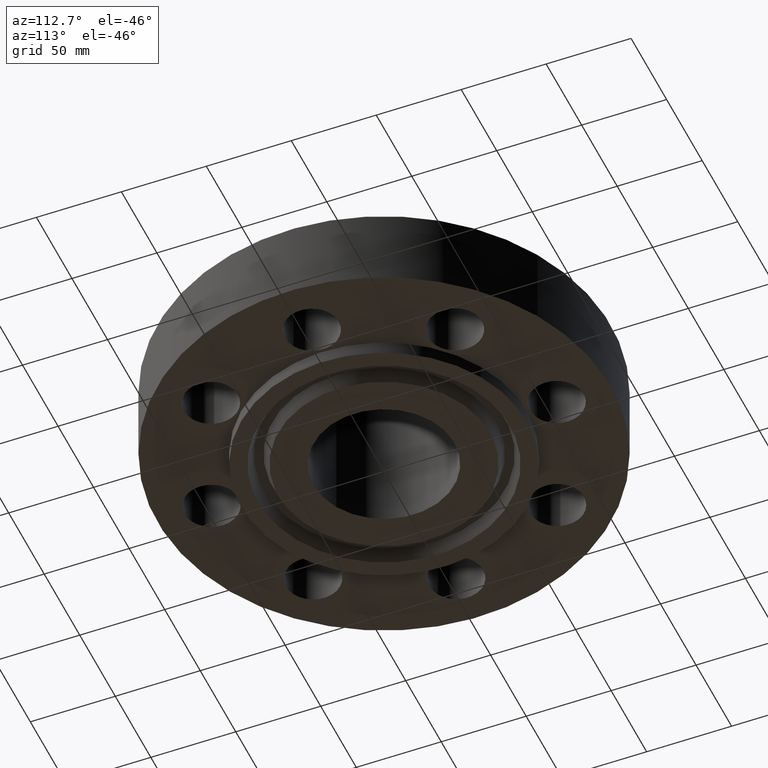
[diagram: clean part render]
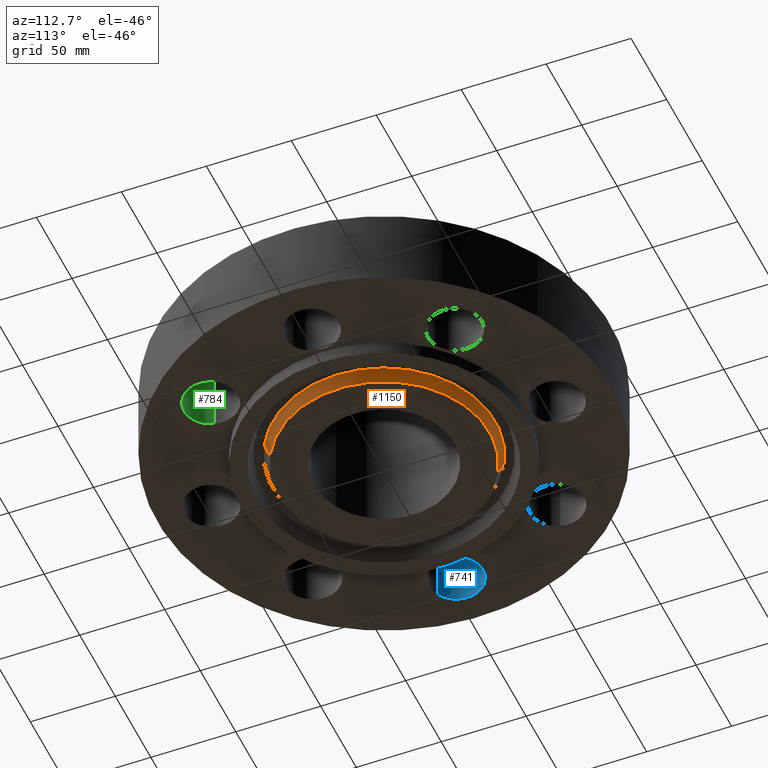
[diagram: same view with three faces highlighted in distinct colors, each labeled with its STEP entity id]
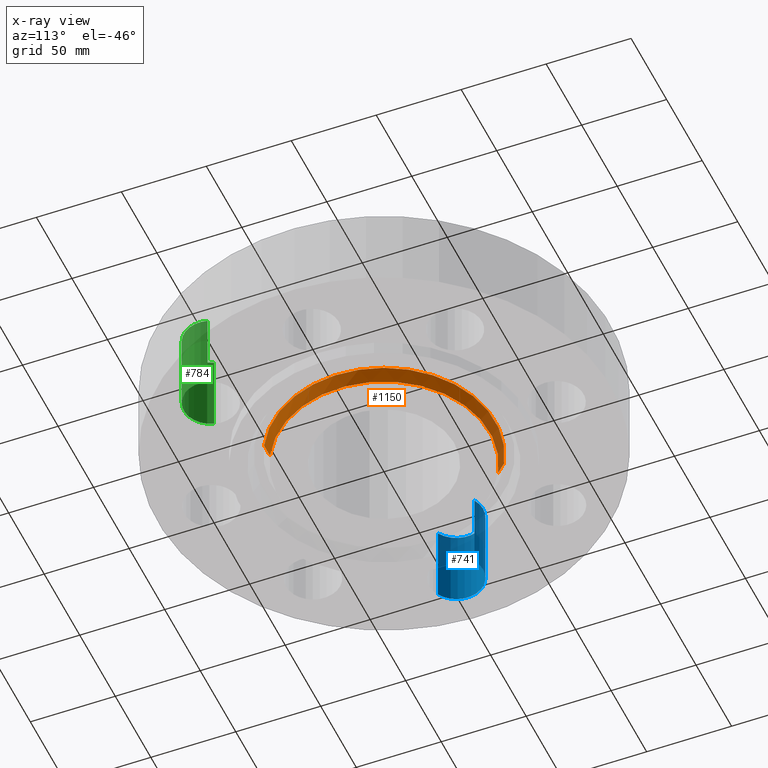
[diagram: x-ray of the same camera — body ghosted, the three highlighted faces saturated]
A machine part, auxiliary view with three faces highlighted in distinct colors.
The next image is the same camera in x-ray (body ghosted, the three faces saturated) — at least one of them is partly hidden behind the body in this view.
Their STEP definitions:

[orange] entity #1150 — the highlighted conical surface has half-angle 23 deg.
#956=AXIS2_PLACEMENT_3D('Circle Axis2P3D',#954,#955,$) ;
#1100=AXIS2_PLACEMENT_3D('Circle Axis2P3D',#1098,#1099,$) ;
#1132=AXIS2_PLACEMENT_3D('Cone Axis2P3D',#1129,#1130,#1131) ;
#954=CARTESIAN_POINT('Axis2P3D Location',(-5.59482469102E-016,5.59482469102E-016,-0.313000000001)) ;
#958=CARTESIAN_POINT('Vertex',(-1.1760308462,2.15271002433,-0.313000000001)) ;
#960=CARTESIAN_POINT('Vertex',(1.1760308462,-2.15271002433,-0.313000000001)) ;
#1095=CARTESIAN_POINT('Vertex',(1.23588396979,-2.26227043217,-0.0188873350169)) ;
#1098=CARTESIAN_POINT('Axis2P3D Location',(0.,0.,-0.0188873350169)) ;
#1102=CARTESIAN_POINT('Vertex',(-1.23588396979,2.26227043217,-0.0188873350169)) ;
#1129=CARTESIAN_POINT('Axis2P3D Location',(0.,0.,-0.373000000001)) ;
#1134=CARTESIAN_POINT('Line Origine',(-1.205957408,2.20749022825,-0.165943667509)) ;
#1139=CARTESIAN_POINT('Line Origine',(1.205957408,-2.20749022825,-0.165943667509)) ;
#955=DIRECTION('Axis2P3D Direction',(0.,0.,-0.0393700787402)) ;
#1099=DIRECTION('Axis2P3D Direction',(0.,0.,0.0393700787402)) ;
#1130=DIRECTION('Axis2P3D Direction',(0.,0.,0.0393700787402)) ;
#1131=DIRECTION('Axis2P3D XDirection',(-0.0188750212049,0.0345504945626,0.)) ;
#1135=DIRECTION('Vector Direction',(-0.00737505833565,0.0134999537303,0.0362403485611)) ;
#1140=DIRECTION('Vector Direction',(0.00737505833565,-0.0134999537303,0.0362403485611)) ;
#1136=VECTOR('Line Direction',#1135,0.0393700787402) ;
#1141=VECTOR('Line Direction',#1140,0.0393700787402) ;
#1145=ORIENTED_EDGE('',*,*,#1138,.F.) ;
#1146=ORIENTED_EDGE('',*,*,#1104,.F.) ;
#1147=ORIENTED_EDGE('',*,*,#1143,.T.) ;
#1148=ORIENTED_EDGE('',*,*,#962,.F.) ;
#1150=ADVANCED_FACE('PartBody',(#1149),#1133,.T.) ;
#957=CIRCLE('generated circle',#956,2.45300000001) ;
#1101=CIRCLE('generated circle',#1100,2.57784341942) ;
#1133=CONICAL_SURFACE('Cone',#1132,2.42753151104,0.401425727959) ;
#962=EDGE_CURVE('',#959,#961,#957,.T.) ;
#1104=EDGE_CURVE('',#1096,#1103,#1101,.T.) ;
#1138=EDGE_CURVE('',#1103,#959,#1137,.F.) ;
#1143=EDGE_CURVE('',#1096,#961,#1142,.F.) ;
#1144=EDGE_LOOP('',(#1145,#1146,#1147,#1148)) ;
#1149=FACE_OUTER_BOUND('',#1144,.T.) ;
#1137=LINE('Line',#1134,#1136) ;
#1142=LINE('Line',#1139,#1141) ;
#959=VERTEX_POINT('',#958) ;
#961=VERTEX_POINT('',#960) ;
#1096=VERTEX_POINT('',#1095) ;
#1103=VERTEX_POINT('',#1102) ;

[blue] entity #741 — the highlighted cylindrical surface (edge-blend (fillet) strip) has radius 15.875 mm, axis along (0, 0, -1).
#590=AXIS2_PLACEMENT_3D('Circle Axis2P3D',#588,#589,$) ;
#714=AXIS2_PLACEMENT_3D('Cylinder Axis2P3D',#711,#712,#713) ;
#732=AXIS2_PLACEMENT_3D('Circle Axis2P3D',#730,#731,$) ;
#588=CARTESIAN_POINT('Axis2P3D Location',(-4.00000000002,0.,0.)) ;
#592=CARTESIAN_POINT('Vertex',(-4.29964096164,-0.548489101184,0.)) ;
#594=CARTESIAN_POINT('Vertex',(-3.70035903839,0.548489101184,0.)) ;
#711=CARTESIAN_POINT('Axis2P3D Location',(-4.00000000002,-1.75305610389E-016,1.87606299213)) ;
#716=CARTESIAN_POINT('Line Origine',(-4.29964096164,-0.548489101184,0.940000000004)) ;
#720=CARTESIAN_POINT('Vertex',(-4.29964096164,-0.548489101184,1.88000000001)) ;
#723=CARTESIAN_POINT('Line Origine',(-3.70035903839,0.548489101184,0.940000000004)) ;
#727=CARTESIAN_POINT('Vertex',(-3.70035903839,0.548489101184,1.88000000001)) ;
#730=CARTESIAN_POINT('Axis2P3D Location',(-4.00000000002,-1.75305610389E-016,1.88000000001)) ;
#589=DIRECTION('Axis2P3D Direction',(0.,0.,-0.0393700787402)) ;
#712=DIRECTION('Axis2P3D Direction',(0.,0.,-0.0393700787402)) ;
#713=DIRECTION('Axis2P3D XDirection',(0.0188750212049,0.0345504945626,0.)) ;
#717=DIRECTION('Vector Direction',(0.,0.,-0.0393700787402)) ;
#724=DIRECTION('Vector Direction',(0.,0.,-0.0393700787402)) ;
#731=DIRECTION('Axis2P3D Direction',(0.,0.,-0.0393700787402)) ;
#718=VECTOR('Line Direction',#717,0.0393700787402) ;
#725=VECTOR('Line Direction',#724,0.0393700787402) ;
#736=ORIENTED_EDGE('',*,*,#722,.F.) ;
#737=ORIENTED_EDGE('',*,*,#596,.T.) ;
#738=ORIENTED_EDGE('',*,*,#729,.T.) ;
#739=ORIENTED_EDGE('',*,*,#734,.F.) ;
#741=ADVANCED_FACE('PartBody',(#740),#715,.F.) ;
#591=CIRCLE('generated circle',#590,0.625000000003) ;
#733=CIRCLE('generated circle',#732,0.625000000003) ;
#715=CYLINDRICAL_SURFACE('generated cylinder',#714,0.625000000003) ;
#596=EDGE_CURVE('',#593,#595,#591,.T.) ;
#722=EDGE_CURVE('',#593,#721,#719,.F.) ;
#729=EDGE_CURVE('',#595,#728,#726,.F.) ;
#734=EDGE_CURVE('',#721,#728,#733,.T.) ;
#735=EDGE_LOOP('',(#736,#737,#738,#739)) ;
#740=FACE_OUTER_BOUND('',#735,.T.) ;
#719=LINE('Line',#716,#718) ;
#726=LINE('Line',#723,#725) ;
#593=VERTEX_POINT('',#592) ;
#595=VERTEX_POINT('',#594) ;
#721=VERTEX_POINT('',#720) ;
#728=VERTEX_POINT('',#727) ;

[green] entity #784 — the highlighted cylindrical surface (edge-blend (fillet) strip) has radius 15.875 mm, axis along (-0, 0, -1).
#536=AXIS2_PLACEMENT_3D('Circle Axis2P3D',#534,#535,$) ;
#757=AXIS2_PLACEMENT_3D('Cylinder Axis2P3D',#754,#755,#756) ;
#775=AXIS2_PLACEMENT_3D('Circle Axis2P3D',#773,#774,$) ;
#534=CARTESIAN_POINT('Axis2P3D Location',(2.82842712476,-2.82842712476,0.)) ;
#538=CARTESIAN_POINT('Vertex',(3.4281456435,-2.65246491779,0.)) ;
#540=CARTESIAN_POINT('Vertex',(2.22870860601,-3.00438933172,0.)) ;
#754=CARTESIAN_POINT('Axis2P3D Location',(2.82842712476,-2.82842712476,1.87606299213)) ;
#759=CARTESIAN_POINT('Line Origine',(3.4281456435,-2.65246491779,0.940000000004)) ;
#763=CARTESIAN_POINT('Vertex',(3.4281456435,-2.65246491779,1.88000000001)) ;
#766=CARTESIAN_POINT('Line Origine',(2.22870860601,-3.00438933172,0.940000000004)) ;
#770=CARTESIAN_POINT('Vertex',(2.22870860601,-3.00438933172,1.88000000001)) ;
#773=CARTESIAN_POINT('Axis2P3D Location',(2.82842712476,-2.82842712476,1.88000000001)) ;
#535=DIRECTION('Axis2P3D Direction',(0.,0.,-0.0393700787402)) ;
#755=DIRECTION('Axis2P3D Direction',(-0.,0.,-0.0393700787402)) ;
#756=DIRECTION('Axis2P3D XDirection',(-0.0377775444876,-0.0110842335096,0.)) ;
#760=DIRECTION('Vector Direction',(0.,0.,-0.0393700787402)) ;
#767=DIRECTION('Vector Direction',(0.,0.,-0.0393700787402)) ;
#774=DIRECTION('Axis2P3D Direction',(-0.,0.,-0.0393700787402)) ;
#761=VECTOR('Line Direction',#760,0.0393700787402) ;
#768=VECTOR('Line Direction',#767,0.0393700787402) ;
#779=ORIENTED_EDGE('',*,*,#765,.F.) ;
#780=ORIENTED_EDGE('',*,*,#542,.T.) ;
#781=ORIENTED_EDGE('',*,*,#772,.T.) ;
#782=ORIENTED_EDGE('',*,*,#777,.F.) ;
#784=ADVANCED_FACE('PartBody',(#783),#758,.F.) ;
#537=CIRCLE('generated circle',#536,0.625000000002) ;
#776=CIRCLE('generated circle',#775,0.625000000002) ;
#758=CYLINDRICAL_SURFACE('generated cylinder',#757,0.625000000002) ;
#542=EDGE_CURVE('',#539,#541,#537,.T.) ;
#765=EDGE_CURVE('',#539,#764,#762,.F.) ;
#772=EDGE_CURVE('',#541,#771,#769,.F.) ;
#777=EDGE_CURVE('',#764,#771,#776,.T.) ;
#778=EDGE_LOOP('',(#779,#780,#781,#782)) ;
#783=FACE_OUTER_BOUND('',#778,.T.) ;
#762=LINE('Line',#759,#761) ;
#769=LINE('Line',#766,#768) ;
#539=VERTEX_POINT('',#538) ;
#541=VERTEX_POINT('',#540) ;
#764=VERTEX_POINT('',#763) ;
#771=VERTEX_POINT('',#770) ;